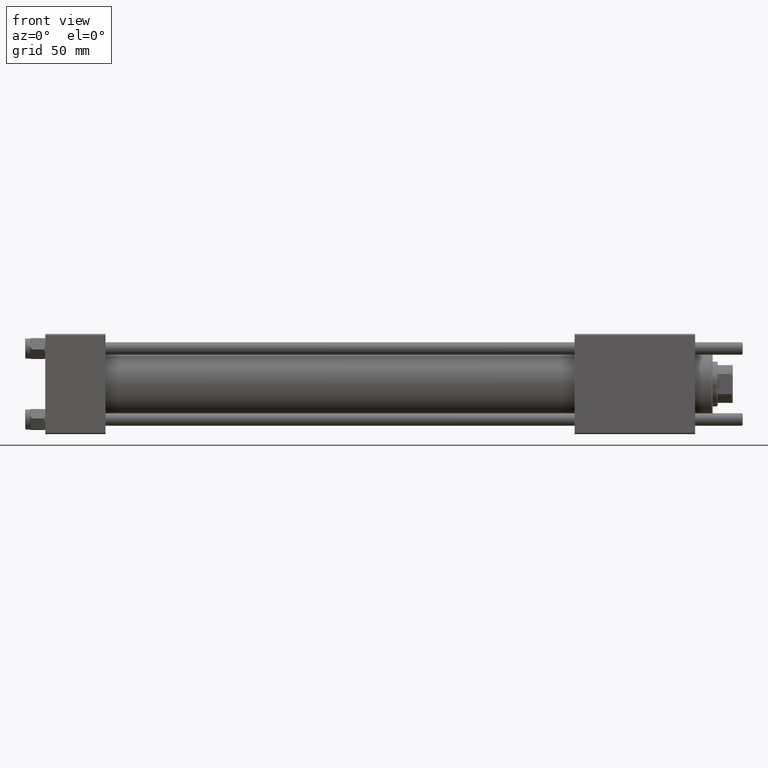
[diagram: clean part render]
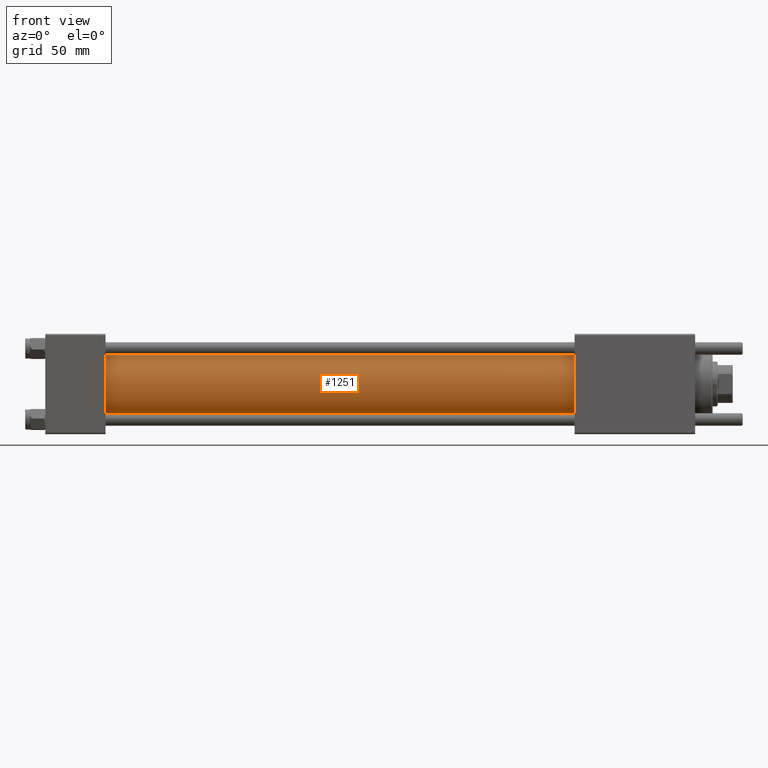
[diagram: same view with one face highlighted and labeled with its STEP entity id]
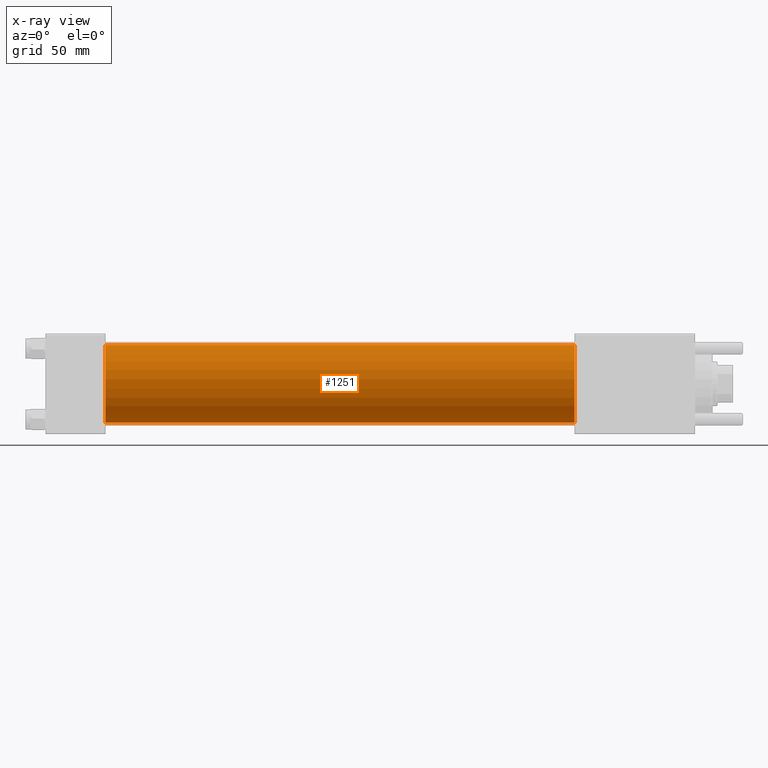
[diagram: x-ray of the same camera — body ghosted, the highlighted face saturated]
A machine part, front view. The second image highlights one B-rep face of the part: STEP entity #1251.
The next image is the same camera in x-ray: the body ghosted, the highlighted face saturated — about 0% of this face is hidden behind the body in this view.
In plain terms, the highlighted cylindrical surface (partial cylindrical patch) has radius 15.5 mm, axis along (-1, -0, -0).
Its self-contained STEP definition (entity closure, byte-faithful):
#1251 = ADVANCED_FACE ( 'NONE', ( #53075 ), #13823, .T. ) ;
#1833 = EDGE_LOOP ( 'NONE', ( #22062, #43877, #26984, #5067 ) ) ;
#3562 = AXIS2_PLACEMENT_3D ( 'NONE', #52255, #4676, #56563 ) ;
#4673 = VECTOR ( 'NONE', #54403, 1000.000000000000000 ) ;
#4676 = DIRECTION ( 'NONE',  ( 1.000000000000000000, 0.000000000000000000, 0.000000000000000000 ) ) ;
#5067 = ORIENTED_EDGE ( 'NONE', *, *, #8491, .T. ) ;
#8491 = EDGE_CURVE ( 'NONE', #42929, #28971, #50119, .T. ) ;
#13823 = CYLINDRICAL_SURFACE ( 'NONE', #15263, 15.50000000000000000 ) ;
#14373 = CARTESIAN_POINT ( 'NONE',  ( 23.99999999999999289, -2.602085213965210642E-15, 0.000000000000000000 ) ) ;
#14678 = DIRECTION ( 'NONE',  ( -1.000000000000000000, -0.000000000000000000, -0.000000000000000000 ) ) ;
#15263 = AXIS2_PLACEMENT_3D ( 'NONE', #27013, #44482, #22688 ) ;
#15997 = EDGE_CURVE ( 'NONE', #39430, #42929, #43712, .T. ) ;
#17319 = CARTESIAN_POINT ( 'NONE',  ( 211.0000000000000000, -2.602085213965210642E-15, 15.50000000000000000 ) ) ;
#18089 = DIRECTION ( 'NONE',  ( 1.000000000000000000, 0.000000000000000000, 0.000000000000000000 ) ) ;
#22062 = ORIENTED_EDGE ( 'NONE', *, *, #35071, .F. ) ;
#22688 = DIRECTION ( 'NONE',  ( 0.000000000000000000, 0.000000000000000000, 1.000000000000000000 ) ) ;
#25405 = AXIS2_PLACEMENT_3D ( 'NONE', #14373, #18089, #35902 ) ;
#26984 = ORIENTED_EDGE ( 'NONE', *, *, #15997, .T. ) ;
#27013 = CARTESIAN_POINT ( 'NONE',  ( 211.0000000000000000, -2.602085213965210642E-15, 0.000000000000000000 ) ) ;
#28322 = CIRCLE ( 'NONE', #3562, 15.50000000000000000 ) ;
#28785 = EDGE_CURVE ( 'NONE', #39430, #44412, #28322, .T. ) ;
#28971 = VERTEX_POINT ( 'NONE', #30644 ) ;
#29938 = VECTOR ( 'NONE', #14678, 1000.000000000000000 ) ;
#30644 = CARTESIAN_POINT ( 'NONE',  ( 23.99999999999999289, -7.038826752868131828E-16, -15.50000000000000000 ) ) ;
#31257 = CARTESIAN_POINT ( 'NONE',  ( 23.99999999999999289, -2.602085213965210642E-15, 15.50000000000000000 ) ) ;
#33327 = CARTESIAN_POINT ( 'NONE',  ( 211.0000000000000000, -7.038826752868131828E-16, -15.50000000000000000 ) ) ;
#35071 = EDGE_CURVE ( 'NONE', #44412, #28971, #36660, .T. ) ;
#35902 = DIRECTION ( 'NONE',  ( 0.000000000000000000, 0.000000000000000000, 1.000000000000000000 ) ) ;
#36660 = LINE ( 'NONE', #50655, #4673 ) ;
#39430 = VERTEX_POINT ( 'NONE', #17319 ) ;
#42929 = VERTEX_POINT ( 'NONE', #31257 ) ;
#43712 = LINE ( 'NONE', #52849, #29938 ) ;
#43877 = ORIENTED_EDGE ( 'NONE', *, *, #28785, .F. ) ;
#44412 = VERTEX_POINT ( 'NONE', #33327 ) ;
#44482 = DIRECTION ( 'NONE',  ( -1.000000000000000000, -0.000000000000000000, -0.000000000000000000 ) ) ;
#50119 = CIRCLE ( 'NONE', #25405, 15.50000000000000000 ) ;
#50655 = CARTESIAN_POINT ( 'NONE',  ( 211.0000000000000000, -7.038826752868131828E-16, -15.50000000000000000 ) ) ;
#52255 = CARTESIAN_POINT ( 'NONE',  ( 211.0000000000000000, -2.602085213965210642E-15, 0.000000000000000000 ) ) ;
#52849 = CARTESIAN_POINT ( 'NONE',  ( 211.0000000000000000, -2.602085213965210642E-15, 15.50000000000000000 ) ) ;
#53075 = FACE_OUTER_BOUND ( 'NONE', #1833, .T. ) ;
#54403 = DIRECTION ( 'NONE',  ( -1.000000000000000000, -0.000000000000000000, -0.000000000000000000 ) ) ;
#56563 = DIRECTION ( 'NONE',  ( 0.000000000000000000, 0.000000000000000000, -1.000000000000000000 ) ) ;